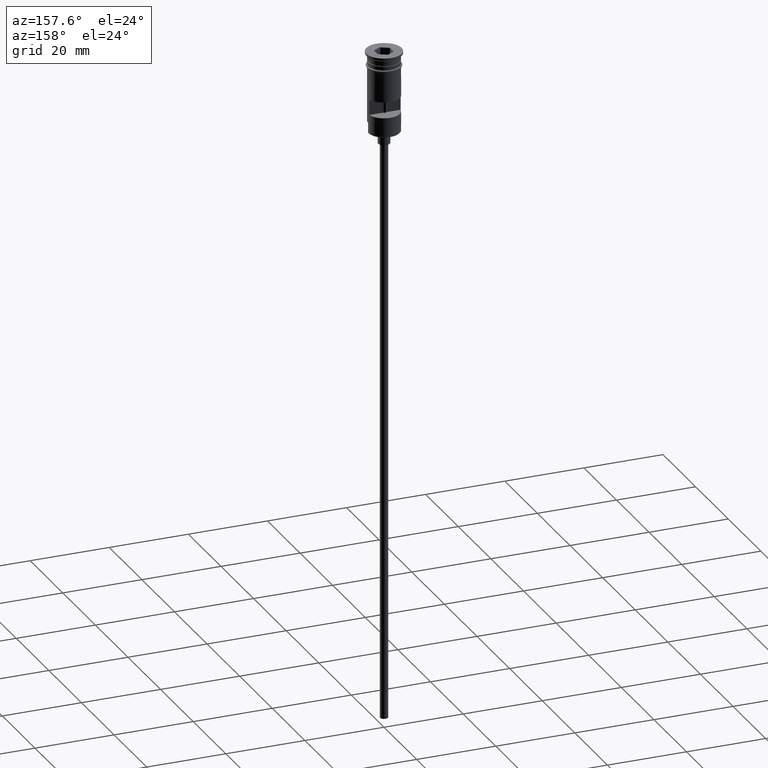
[diagram: clean part render]
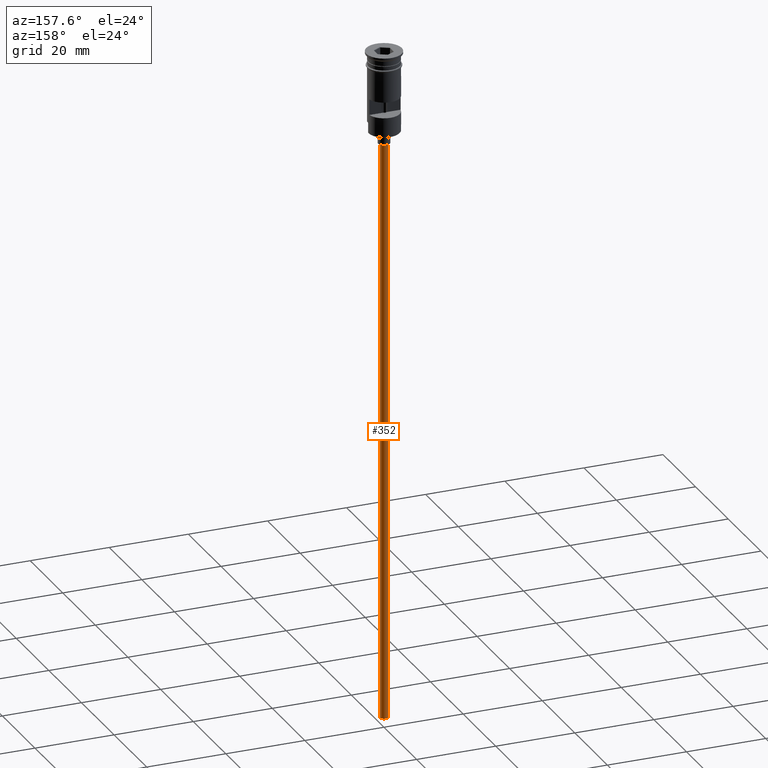
[diagram: same view with one face highlighted and labeled with its STEP entity id]
A machine part, auxiliary view. The second image highlights one B-rep face of the part: STEP entity #352.
In plain terms, the highlighted cylindrical surface (edge-blend (fillet) strip) has radius 1 mm, axis along (-0, -0, 1).
Its self-contained STEP definition (entity closure, byte-faithful):
#11 = VERTEX_POINT ( 'NONE', #1183 ) ;
#15 = ORIENTED_EDGE ( 'NONE', *, *, #691, .F. ) ;
#111 = ORIENTED_EDGE ( 'NONE', *, *, #589, .T. ) ;
#170 = VERTEX_POINT ( 'NONE', #800 ) ;
#177 = CYLINDRICAL_SURFACE ( 'NONE', #439, 0.9999999999999997780 ) ;
#179 = DIRECTION ( 'NONE',  ( -0.000000000000000000, -0.000000000000000000, 1.000000000000000000 ) ) ;
#230 = ORIENTED_EDGE ( 'NONE', *, *, #734, .F. ) ;
#256 = CARTESIAN_POINT ( 'NONE',  ( -0.9999999999999997780, 1.224646799147352961E-16, -170.4999999999999716 ) ) ;
#285 = CIRCLE ( 'NONE', #1065, 0.9999999999999997780 ) ;
#290 = EDGE_CURVE ( 'NONE', #1411, #522, #506, .T. ) ;
#352 = ADVANCED_FACE ( 'NONE', ( #1512 ), #177, .T. ) ;
#375 = DIRECTION ( 'NONE',  ( -1.000000000000000000, 0.000000000000000000, 0.000000000000000000 ) ) ;
#439 = AXIS2_PLACEMENT_3D ( 'NONE', #1184, #1386, #786 ) ;
#481 = VECTOR ( 'NONE', #179, 1000.000000000000000 ) ;
#506 = LINE ( 'NONE', #894, #721 ) ;
#522 = VERTEX_POINT ( 'NONE', #1148 ) ;
#567 = EDGE_LOOP ( 'NONE', ( #15, #1061, #111, #230 ) ) ;
#589 = EDGE_CURVE ( 'NONE', #522, #170, #644, .T. ) ;
#641 = CARTESIAN_POINT ( 'NONE',  ( 0.000000000000000000, 0.000000000000000000, -23.49999999999999645 ) ) ;
#644 = CIRCLE ( 'NONE', #1595, 0.9999999999999997780 ) ;
#659 = DIRECTION ( 'NONE',  ( -1.000000000000000000, 0.000000000000000000, 0.000000000000000000 ) ) ;
#681 = DIRECTION ( 'NONE',  ( 0.000000000000000000, 0.000000000000000000, -1.000000000000000000 ) ) ;
#691 = EDGE_CURVE ( 'NONE', #1411, #11, #285, .T. ) ;
#721 = VECTOR ( 'NONE', #1045, 1000.000000000000000 ) ;
#734 = EDGE_CURVE ( 'NONE', #11, #170, #787, .T. ) ;
#786 = DIRECTION ( 'NONE',  ( 1.000000000000000000, 0.000000000000000000, 0.000000000000000000 ) ) ;
#787 = LINE ( 'NONE', #1284, #481 ) ;
#800 = CARTESIAN_POINT ( 'NONE',  ( 0.9999999999999997780, 0.000000000000000000, -23.49999999999999645 ) ) ;
#894 = CARTESIAN_POINT ( 'NONE',  ( -0.9999999999999997780, 1.224646799147352961E-16, -170.4999999999999716 ) ) ;
#1045 = DIRECTION ( 'NONE',  ( -0.000000000000000000, -0.000000000000000000, 1.000000000000000000 ) ) ;
#1061 = ORIENTED_EDGE ( 'NONE', *, *, #290, .T. ) ;
#1065 = AXIS2_PLACEMENT_3D ( 'NONE', #1562, #681, #659 ) ;
#1148 = CARTESIAN_POINT ( 'NONE',  ( -0.9999999999999997780, 1.224646799147352961E-16, -23.49999999999999645 ) ) ;
#1183 = CARTESIAN_POINT ( 'NONE',  ( 0.9999999999999997780, 0.000000000000000000, -170.4999999999999716 ) ) ;
#1184 = CARTESIAN_POINT ( 'NONE',  ( 0.000000000000000000, 0.000000000000000000, -170.4999999999999716 ) ) ;
#1284 = CARTESIAN_POINT ( 'NONE',  ( 0.9999999999999997780, 0.000000000000000000, -170.4999999999999716 ) ) ;
#1373 = DIRECTION ( 'NONE',  ( 0.000000000000000000, 0.000000000000000000, -1.000000000000000000 ) ) ;
#1386 = DIRECTION ( 'NONE',  ( -0.000000000000000000, -0.000000000000000000, 1.000000000000000000 ) ) ;
#1411 = VERTEX_POINT ( 'NONE', #256 ) ;
#1512 = FACE_OUTER_BOUND ( 'NONE', #567, .T. ) ;
#1562 = CARTESIAN_POINT ( 'NONE',  ( 0.000000000000000000, 0.000000000000000000, -170.4999999999999716 ) ) ;
#1595 = AXIS2_PLACEMENT_3D ( 'NONE', #641, #1373, #375 ) ;